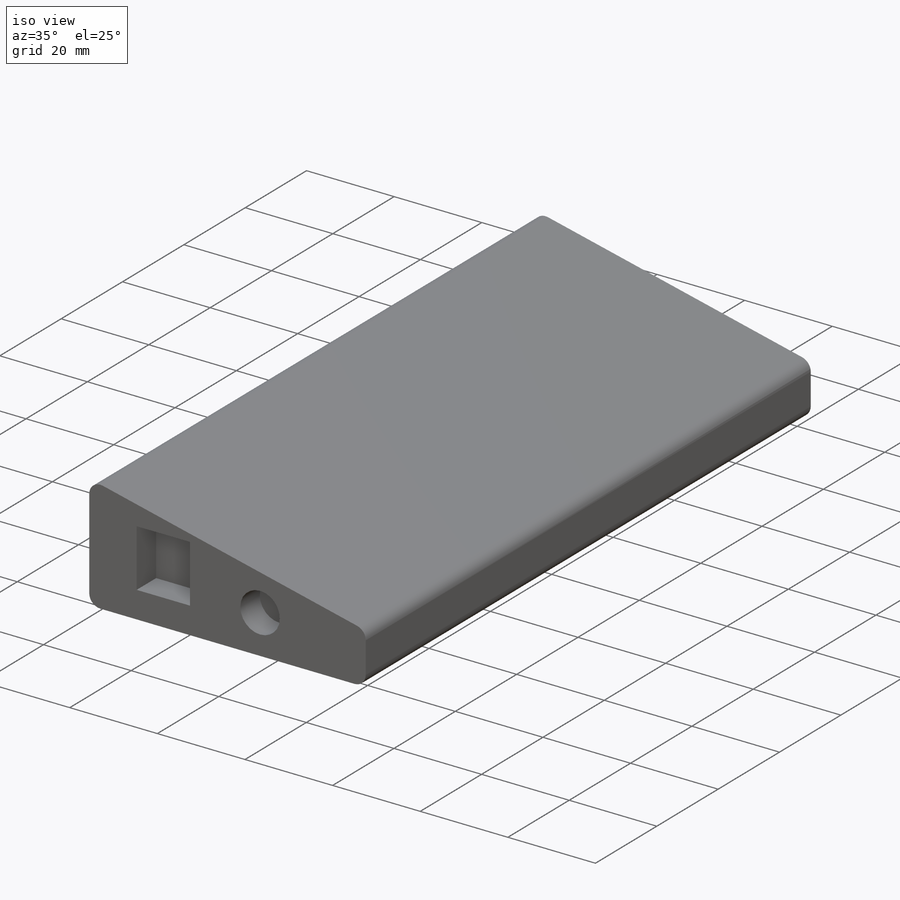
[diagram: iso view]
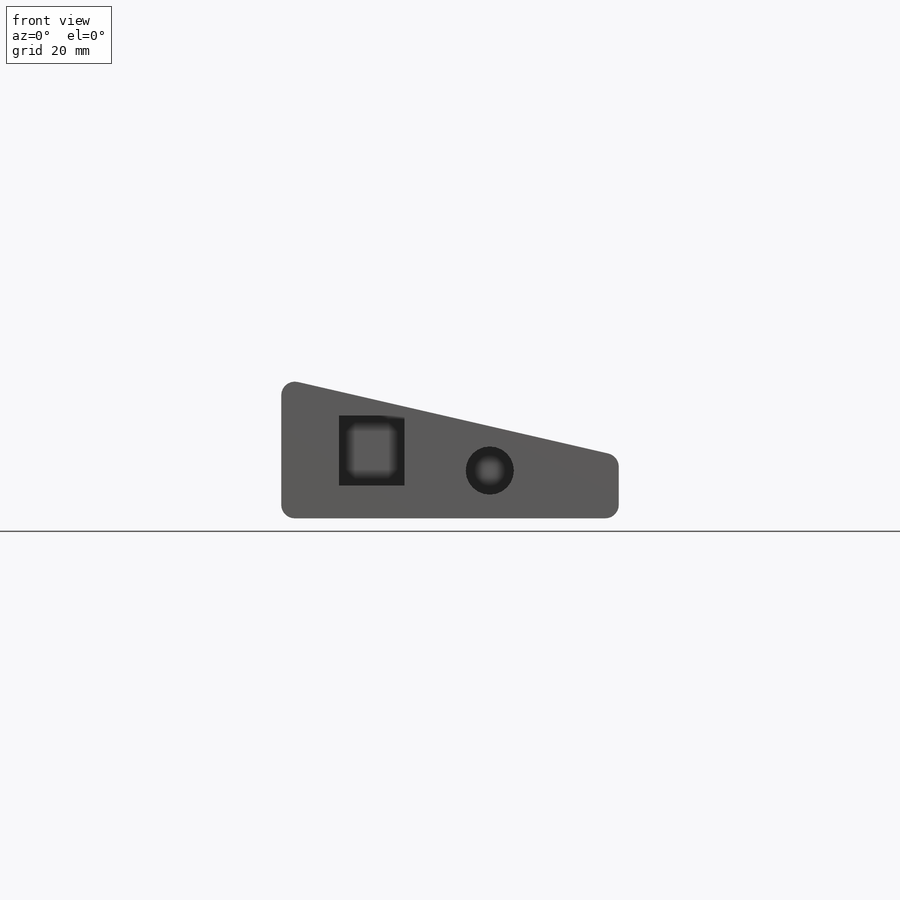
[diagram: front view]
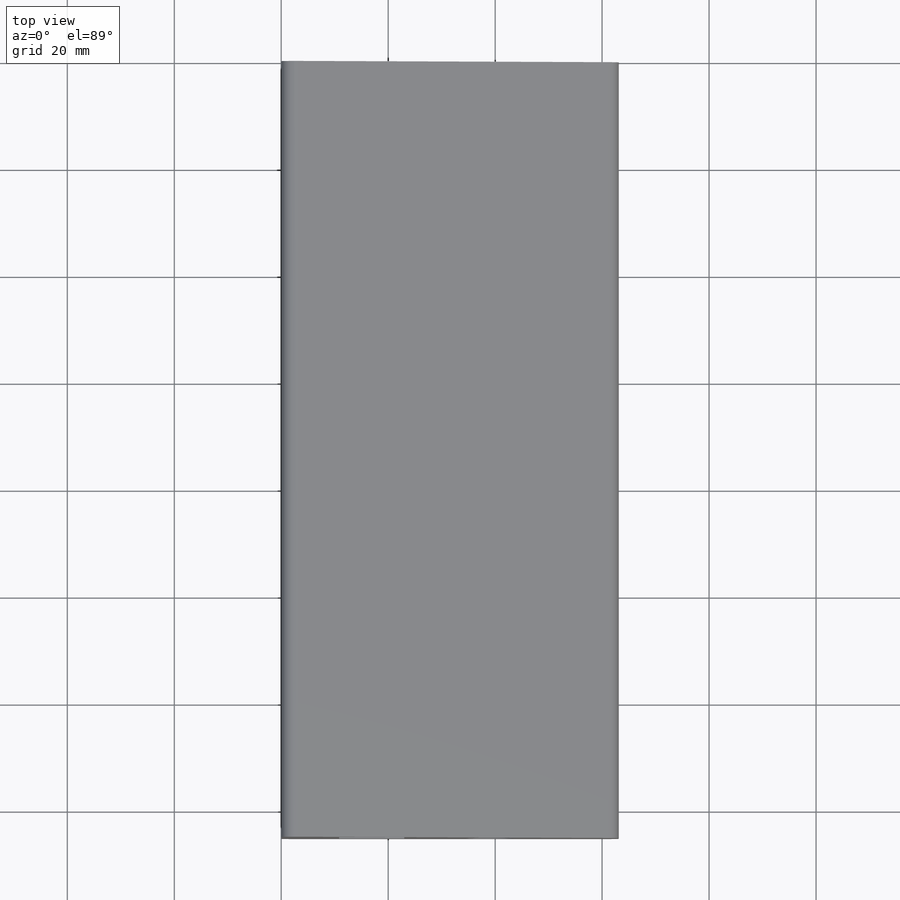
[diagram: top view]
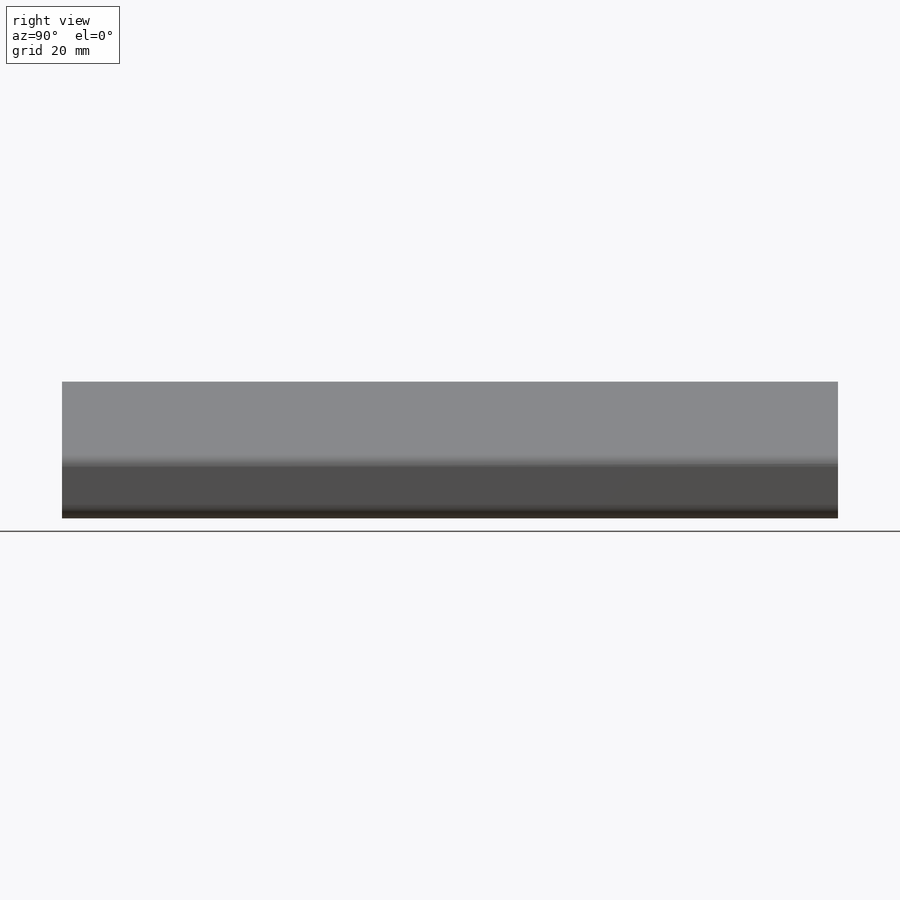
[diagram: right view]
SOLIDWORKS PART (.sldprt)
format: sldprt  version: not decoded by parser v0  size: 236,544 bytes
history: native  units: mm
features: sketch x4, cut_extrude x3, material x1, extrude x1 (+13 scaffold rows collapsed)
feature tree (22):
  scaffold x13  (default folders/planes/origin — collapsed)
  material  "Material <not specified>"
  sketch  "Sketch1"  dims[D4=2.54mm D1=11.684mm D2=26.2255mm D3=63.119mm]
  extrude  "Boss-Extrude1"  Depth=145.0848mm
  sketch  "Sketch2"  dims[D1=9.0043mm D2=12.192mm D3=13.1191mm D4=10.8204mm D5=6.096mm D6=24.13mm D7=8.9154mm]
  cut_extrude  "Cut-Extrude1"  Depth=6.35mm
  sketch  "Sketch3"  dims[D1=13.1064mm D2=5.9944mm D3=25.4mm D4=7.1882mm D6=7.9756mm D5=5.0]
  cut_extrude  "Cut-Extrude2"  Depth=6.35mm
  sketch  "Sketch4"  dims[D1=13.0429mm D2=7.2009mm D3=7.1628mm D5=8.2931mm D4=2.0]
  cut_extrude  "Cut-Extrude3"  Depth=6.35mm
decode coverage: 8 of 8 modeling features carry decoded parameters
note: suppression state not decoded; provenance and decode notes live in map.json
